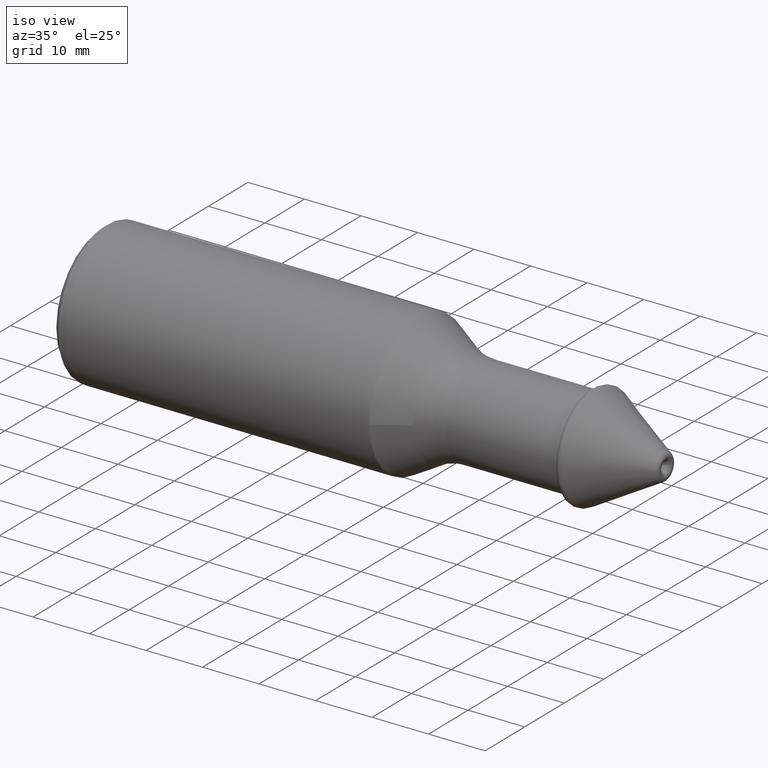
[diagram: clean part render]
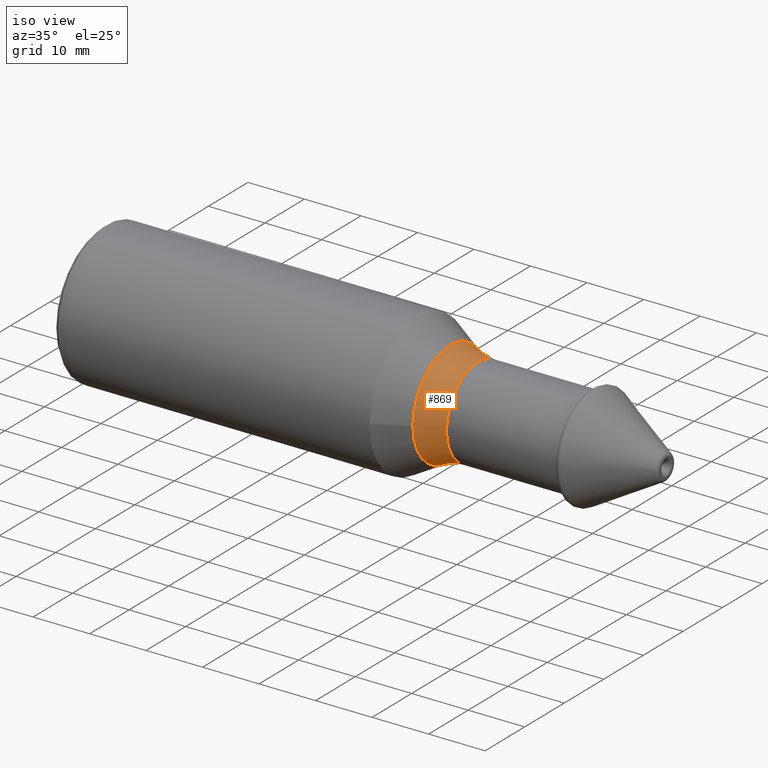
[diagram: same view with one face highlighted and labeled with its STEP entity id]
A machine part, iso view. The second image highlights one B-rep face of the part: STEP entity #869.
In plain terms, the highlighted toroidal blend (fillet) surface has major radius 18.0001 mm and minor (blend) radius 10.0001 mm.
Its self-contained STEP definition (entity closure, byte-faithful):
#35 = AXIS2_PLACEMENT_3D ( 'NONE', #789, #785, #781 ) ;
#46 = DIRECTION ( 'NONE',  ( 0.0000000000000000000, 1.000000000000000000, 0.0000000000000000000 ) ) ;
#51 = DIRECTION ( 'NONE',  ( 1.000000000000000000, 1.223020211043870700E-016, -0.0000000000000000000 ) ) ;
#59 = CARTESIAN_POINT ( 'NONE',  ( -45.25299999999999300, -6.707990893156943400E-015, 0.0000000000000000000 ) ) ;
#80 = VERTEX_POINT ( 'NONE', #211 ) ;
#115 = CARTESIAN_POINT ( 'NONE',  ( -40.25300000000000000, -6.938893903907228400E-015, 0.0000000000000000000 ) ) ;
#153 = ORIENTED_EDGE ( 'NONE', *, *, #400, .F. ) ;
#177 = ORIENTED_EDGE ( 'NONE', *, *, #799, .T. ) ;
#182 = CIRCLE ( 'NONE', #35, 8.000000000000005300 ) ;
#211 = CARTESIAN_POINT ( 'NONE',  ( -45.25299999999999300, 9.339734693784917500, 0.0000000000000000000 ) ) ;
#214 = FACE_OUTER_BOUND ( 'NONE', #836, .T. ) ;
#236 = CARTESIAN_POINT ( 'NONE',  ( -40.25299999999999300, 7.999999999999998200, 0.0000000000000000000 ) ) ;
#400 = EDGE_CURVE ( 'NONE', #1069, #1069, #182, .T. ) ;
#460 = CIRCLE ( 'NONE', #791, 9.339734693784924600 ) ;
#499 = DIRECTION ( 'NONE',  ( 1.000000000000000000, 1.223020211043870700E-016, -0.0000000000000000000 ) ) ;
#616 = FACE_OUTER_BOUND ( 'NONE', #1109, .T. ) ;
#705 = AXIS2_PLACEMENT_3D ( 'NONE', #115, #499, #1058 ) ;
#781 = DIRECTION ( 'NONE',  ( 0.0000000000000000000, 1.000000000000000000, 0.0000000000000000000 ) ) ;
#785 = DIRECTION ( 'NONE',  ( 1.000000000000000000, 1.223020211043870700E-016, -0.0000000000000000000 ) ) ;
#789 = CARTESIAN_POINT ( 'NONE',  ( -40.25299999999999300, -6.096480787635008300E-015, 0.0000000000000000000 ) ) ;
#791 = AXIS2_PLACEMENT_3D ( 'NONE', #59, #51, #46 ) ;
#799 = EDGE_CURVE ( 'NONE', #80, #80, #460, .T. ) ;
#836 = EDGE_LOOP ( 'NONE', ( #177 ) ) ;
#869 = ADVANCED_FACE ( 'NONE', ( #214, #616 ), #996, .F. ) ;
#996 = TOROIDAL_SURFACE ( 'NONE', #705, 18.00007284055331900, 10.00007284055331000 ) ;
#1058 = DIRECTION ( 'NONE',  ( -1.223020211043870700E-016, 1.000000000000000000, 0.0000000000000000000 ) ) ;
#1069 = VERTEX_POINT ( 'NONE', #236 ) ;
#1109 = EDGE_LOOP ( 'NONE', ( #153 ) ) ;